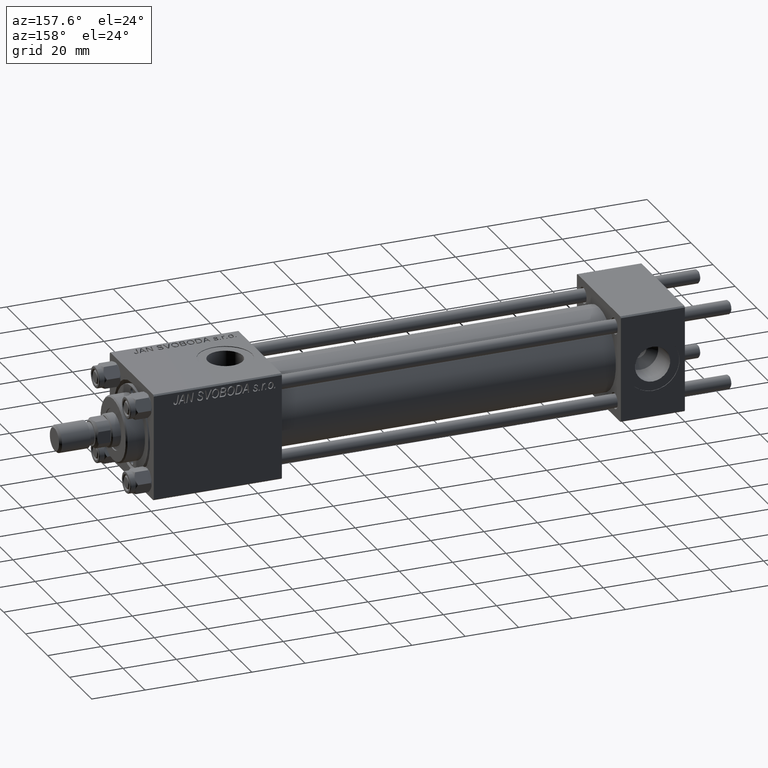
[diagram: clean part render]
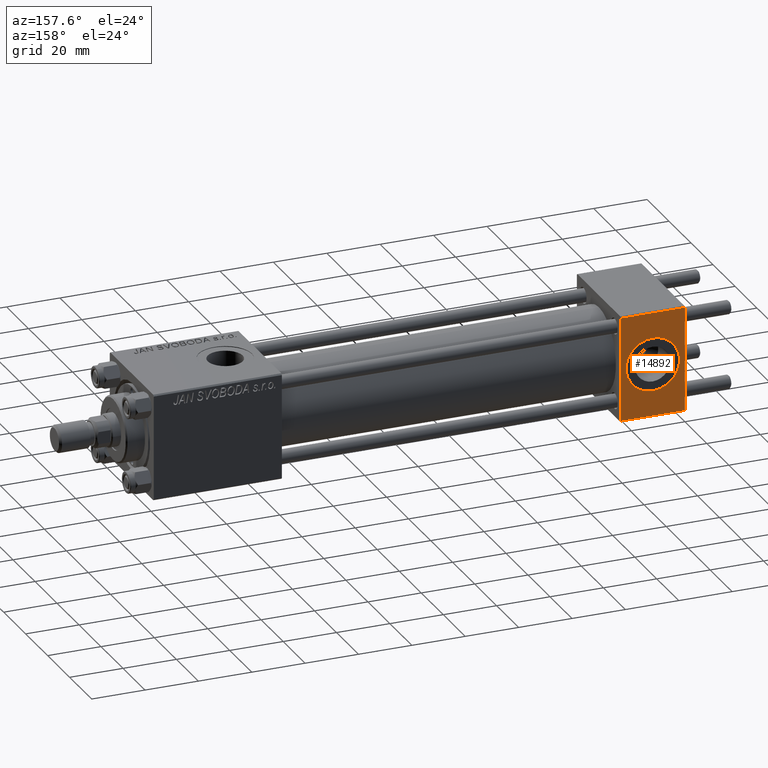
[diagram: same view with one face highlighted and labeled with its STEP entity id]
A machine part, auxiliary view. The second image highlights one B-rep face of the part: STEP entity #14892.
In plain terms, the highlighted planar face has unit normal (0, 1, 0).
Its self-contained STEP definition (entity closure, byte-faithful):
#1223 = EDGE_CURVE ( 'NONE', #40669, #14158, #28708, .T. ) ;
#1523 = DIRECTION ( 'NONE',  ( 0.000000000000000000, 1.000000000000000000, 0.000000000000000000 ) ) ;
#2170 = AXIS2_PLACEMENT_3D ( 'NONE', #27814, #15845, #46948 ) ;
#3364 = DIRECTION ( 'NONE',  ( 0.000000000000000000, 0.000000000000000000, 1.000000000000000000 ) ) ;
#3895 = ORIENTED_EDGE ( 'NONE', *, *, #29560, .T. ) ;
#7803 = LINE ( 'NONE', #23089, #15233 ) ;
#9769 = LINE ( 'NONE', #32955, #9854 ) ;
#9854 = VECTOR ( 'NONE', #29648, 1000.000000000000000 ) ;
#9914 = DIRECTION ( 'NONE',  ( 0.000000000000000000, 0.000000000000000000, 1.000000000000000000 ) ) ;
#12782 = PLANE ( 'NONE',  #2170 ) ;
#12994 = VERTEX_POINT ( 'NONE', #49335 ) ;
#14158 = VERTEX_POINT ( 'NONE', #38662 ) ;
#14892 = ADVANCED_FACE ( 'NONE', ( #28064, #20427 ), #12782, .T. ) ;
#15233 = VECTOR ( 'NONE', #22589, 1000.000000000000000 ) ;
#15414 = CIRCLE ( 'NONE', #47161, 10.00000000000000000 ) ;
#15845 = DIRECTION ( 'NONE',  ( -0.000000000000000000, 1.000000000000000000, 0.000000000000000000 ) ) ;
#16267 = DIRECTION ( 'NONE',  ( -1.000000000000000000, 0.000000000000000000, 0.000000000000000000 ) ) ;
#17546 = LINE ( 'NONE', #36665, #44744 ) ;
#18053 = DIRECTION ( 'NONE',  ( 0.000000000000000000, 0.000000000000000000, -1.000000000000000000 ) ) ;
#18784 = CARTESIAN_POINT ( 'NONE',  ( 12.00000000000000000, 20.00000000000000000, 10.00000000000000000 ) ) ;
#20427 = FACE_OUTER_BOUND ( 'NONE', #33047, .T. ) ;
#20899 = CARTESIAN_POINT ( 'NONE',  ( 0.000000000000000000, 20.00000000000000000, -19.50000000000002132 ) ) ;
#21200 = ORIENTED_EDGE ( 'NONE', *, *, #21676, .F. ) ;
#21668 = VERTEX_POINT ( 'NONE', #20899 ) ;
#21676 = EDGE_CURVE ( 'NONE', #14158, #40669, #15414, .T. ) ;
#22589 = DIRECTION ( 'NONE',  ( 1.000000000000000000, 0.000000000000000000, 0.000000000000000000 ) ) ;
#22969 = DIRECTION ( 'NONE',  ( 0.000000000000000000, 1.000000000000000000, 0.000000000000000000 ) ) ;
#23089 = CARTESIAN_POINT ( 'NONE',  ( 24.00000000000000000, 20.00000000000000000, 19.49999999999999289 ) ) ;
#23903 = CARTESIAN_POINT ( 'NONE',  ( 24.00000000000000000, 20.00000000000000000, -19.50000000000002132 ) ) ;
#26150 = CARTESIAN_POINT ( 'NONE',  ( 24.00000000000000000, 20.00000000000000000, -19.50000000000002132 ) ) ;
#26870 = CARTESIAN_POINT ( 'NONE',  ( 24.00000000000000000, 20.00000000000000000, 19.49999999999999289 ) ) ;
#27082 = EDGE_CURVE ( 'NONE', #12994, #21668, #9769, .T. ) ;
#27814 = CARTESIAN_POINT ( 'NONE',  ( 24.00000000000000000, 20.00000000000000000, 20.00000000000000000 ) ) ;
#28064 = FACE_BOUND ( 'NONE', #30946, .T. ) ;
#28708 = CIRCLE ( 'NONE', #46620, 10.00000000000000000 ) ;
#29560 = EDGE_CURVE ( 'NONE', #12994, #45131, #7803, .T. ) ;
#29648 = DIRECTION ( 'NONE',  ( 0.000000000000000000, 0.000000000000000000, -1.000000000000000000 ) ) ;
#30666 = ORIENTED_EDGE ( 'NONE', *, *, #1223, .F. ) ;
#30946 = EDGE_LOOP ( 'NONE', ( #30666, #21200 ) ) ;
#32955 = CARTESIAN_POINT ( 'NONE',  ( 0.000000000000000000, 20.00000000000000000, 20.00000000000000000 ) ) ;
#33047 = EDGE_LOOP ( 'NONE', ( #47233, #43360, #44658, #3895 ) ) ;
#36429 = EDGE_CURVE ( 'NONE', #45131, #50275, #17546, .T. ) ;
#36443 = CARTESIAN_POINT ( 'NONE',  ( 12.00000000000000000, 20.00000000000000000, 0.000000000000000000 ) ) ;
#36665 = CARTESIAN_POINT ( 'NONE',  ( 24.00000000000000000, 20.00000000000000000, 20.00000000000000000 ) ) ;
#37526 = VECTOR ( 'NONE', #16267, 1000.000000000000000 ) ;
#38662 = CARTESIAN_POINT ( 'NONE',  ( 12.00000000000000178, 20.00000000000000000, -10.00000000000000000 ) ) ;
#40669 = VERTEX_POINT ( 'NONE', #18784 ) ;
#43360 = ORIENTED_EDGE ( 'NONE', *, *, #43468, .T. ) ;
#43468 = EDGE_CURVE ( 'NONE', #50275, #21668, #47372, .T. ) ;
#44658 = ORIENTED_EDGE ( 'NONE', *, *, #27082, .F. ) ;
#44744 = VECTOR ( 'NONE', #18053, 1000.000000000000000 ) ;
#45131 = VERTEX_POINT ( 'NONE', #26870 ) ;
#46185 = CARTESIAN_POINT ( 'NONE',  ( 12.00000000000000000, 20.00000000000000000, 0.000000000000000000 ) ) ;
#46620 = AXIS2_PLACEMENT_3D ( 'NONE', #46185, #22969, #3364 ) ;
#46948 = DIRECTION ( 'NONE',  ( 0.000000000000000000, -0.000000000000000000, 1.000000000000000000 ) ) ;
#47161 = AXIS2_PLACEMENT_3D ( 'NONE', #36443, #1523, #9914 ) ;
#47233 = ORIENTED_EDGE ( 'NONE', *, *, #36429, .T. ) ;
#47372 = LINE ( 'NONE', #23903, #37526 ) ;
#49335 = CARTESIAN_POINT ( 'NONE',  ( 0.000000000000000000, 20.00000000000000000, 19.49999999999999289 ) ) ;
#50275 = VERTEX_POINT ( 'NONE', #26150 ) ;